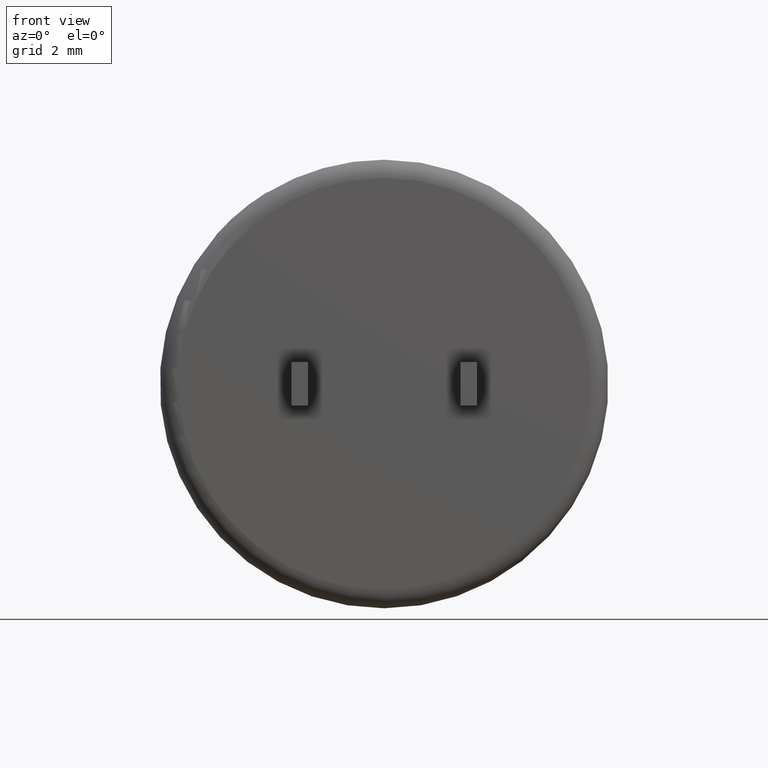
[diagram: clean part render]
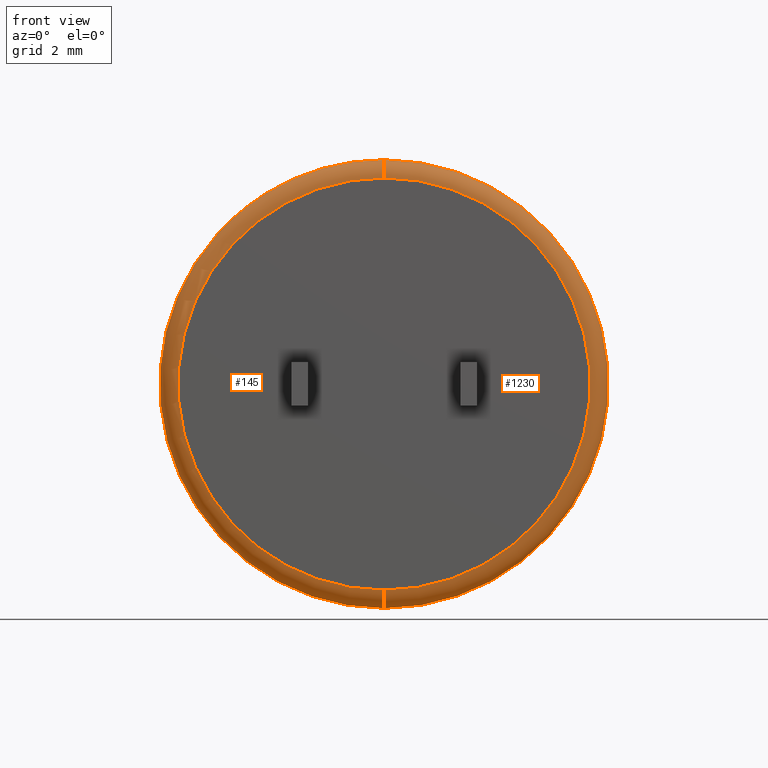
[diagram: same view with one multi-face feature highlighted, each face labeled with its STEP entity id]
A machine part, front view. The highlighted faces form ONE feature: a constant-radius fillet chain: 2 tangent blend faces with common blend radius 0.5483 mm. The faces share edges in the B-rep.
Their STEP definitions:
[1] entity #1230 (Torus):
#3 = ORIENTED_EDGE ( 'NONE', *, *, #2191, .F. ) ;
#287 = EDGE_CURVE ( 'NONE', #2507, #923, #1135, .T. ) ;
#406 = CARTESIAN_POINT ( 'NONE',  ( 0.0000000000000000000, 0.5482500000000001300, -6.750000000000000000 ) ) ;
#438 = CIRCLE ( 'NONE', #1593, 0.5482500000000001300 ) ;
#460 = CIRCLE ( 'NONE', #1229, 6.201749999999999700 ) ;
#541 = DIRECTION ( 'NONE',  ( 1.224646799147352700E-016, 0.0000000000000000000, -1.000000000000000000 ) ) ;
#688 = CARTESIAN_POINT ( 'NONE',  ( 7.930659590428366300E-016, 0.0000000000000000000, -6.201749999999999700 ) ) ;
#764 = DIRECTION ( 'NONE',  ( 0.0000000000000000000, 1.000000000000000000, 0.0000000000000000000 ) ) ;
#772 = DIRECTION ( 'NONE',  ( 0.0000000000000000000, 0.0000000000000000000, 1.000000000000000000 ) ) ;
#898 = DIRECTION ( 'NONE',  ( 0.0000000000000000000, 0.0000000000000000000, 1.000000000000000000 ) ) ;
#923 = VERTEX_POINT ( 'NONE', #406 ) ;
#961 = DIRECTION ( 'NONE',  ( -0.0000000000000000000, -1.000000000000000000, -0.0000000000000000000 ) ) ;
#966 = AXIS2_PLACEMENT_3D ( 'NONE', #2457, #764, #772 ) ;
#970 = CARTESIAN_POINT ( 'NONE',  ( 8.266365894244634300E-016, 0.5482500000000001300, 6.750000000000000000 ) ) ;
#1135 = CIRCLE ( 'NONE', #1666, 0.5482500000000001300 ) ;
#1160 = TOROIDAL_SURFACE ( 'NONE', #2411, 6.201749999999999700, 0.5482500000000000200 ) ;
#1229 = AXIS2_PLACEMENT_3D ( 'NONE', #1803, #961, #2033 ) ;
#1230 = ADVANCED_FACE ( 'NONE', ( #1797 ), #1160, .T. ) ;
#1492 = ORIENTED_EDGE ( 'NONE', *, *, #2229, .F. ) ;
#1563 = CIRCLE ( 'NONE', #966, 6.750000000000000000 ) ;
#1568 = DIRECTION ( 'NONE',  ( 0.0000000000000000000, 0.0000000000000000000, 1.000000000000000000 ) ) ;
#1593 = AXIS2_PLACEMENT_3D ( 'NONE', #2454, #2653, #1568 ) ;
#1666 = AXIS2_PLACEMENT_3D ( 'NONE', #2682, #1817, #541 ) ;
#1797 = FACE_OUTER_BOUND ( 'NONE', #2485, .T. ) ;
#1803 = CARTESIAN_POINT ( 'NONE',  ( 0.0000000000000000000, 0.0000000000000000000, 0.0000000000000000000 ) ) ;
#1817 = DIRECTION ( 'NONE',  ( 1.000000000000000000, -0.0000000000000000000, 1.224646799147353200E-016 ) ) ;
#1871 = ORIENTED_EDGE ( 'NONE', *, *, #2559, .F. ) ;
#1960 = CARTESIAN_POINT ( 'NONE',  ( 0.0000000000000000000, 0.5482500000000001300, 0.0000000000000000000 ) ) ;
#2033 = DIRECTION ( 'NONE',  ( 0.0000000000000000000, 0.0000000000000000000, 1.000000000000000000 ) ) ;
#2103 = ORIENTED_EDGE ( 'NONE', *, *, #287, .T. ) ;
#2182 = DIRECTION ( 'NONE',  ( 0.0000000000000000000, 1.000000000000000000, 0.0000000000000000000 ) ) ;
#2191 = EDGE_CURVE ( 'NONE', #2507, #2667, #460, .T. ) ;
#2229 = EDGE_CURVE ( 'NONE', #2742, #923, #1563, .T. ) ;
#2408 = CARTESIAN_POINT ( 'NONE',  ( 0.0000000000000000000, 0.0000000000000000000, 6.201749999999999700 ) ) ;
#2411 = AXIS2_PLACEMENT_3D ( 'NONE', #1960, #2182, #898 ) ;
#2454 = CARTESIAN_POINT ( 'NONE',  ( 0.0000000000000000000, 0.5482500000000001300, 6.201749999999999700 ) ) ;
#2457 = CARTESIAN_POINT ( 'NONE',  ( 0.0000000000000000000, 0.5482500000000001300, 0.0000000000000000000 ) ) ;
#2485 = EDGE_LOOP ( 'NONE', ( #3, #2103, #1492, #1871 ) ) ;
#2507 = VERTEX_POINT ( 'NONE', #688 ) ;
#2559 = EDGE_CURVE ( 'NONE', #2667, #2742, #438, .T. ) ;
#2653 = DIRECTION ( 'NONE',  ( -1.000000000000000000, 0.0000000000000000000, 0.0000000000000000000 ) ) ;
#2667 = VERTEX_POINT ( 'NONE', #2408 ) ;
#2682 = CARTESIAN_POINT ( 'NONE',  ( 7.594953286612098300E-016, 0.5482500000000001300, -6.201749999999999700 ) ) ;
#2742 = VERTEX_POINT ( 'NONE', #970 ) ;
[2] entity #145 (Torus):
#34 = ORIENTED_EDGE ( 'NONE', *, *, #2559, .T. ) ;
#67 = VERTEX_POINT ( 'NONE', #2406 ) ;
#90 = DIRECTION ( 'NONE',  ( 0.0000000000000000000, 1.000000000000000000, 0.0000000000000000000 ) ) ;
#142 = AXIS2_PLACEMENT_3D ( 'NONE', #1183, #2678, #547 ) ;
#145 = ADVANCED_FACE ( 'NONE', ( #2662 ), #237, .T. ) ;
#159 = ORIENTED_EDGE ( 'NONE', *, *, #287, .F. ) ;
#212 = DIRECTION ( 'NONE',  ( -0.0000000000000000000, -1.000000000000000000, -0.0000000000000000000 ) ) ;
#237 = TOROIDAL_SURFACE ( 'NONE', #1349, 6.201749999999999700, 0.5482500000000000200 ) ;
#287 = EDGE_CURVE ( 'NONE', #2507, #923, #1135, .T. ) ;
#323 = CIRCLE ( 'NONE', #142, 6.750000000000000000 ) ;
#385 = CARTESIAN_POINT ( 'NONE',  ( 0.0000000000000000000, 0.5482500000000001300, 0.0000000000000000000 ) ) ;
#406 = CARTESIAN_POINT ( 'NONE',  ( 0.0000000000000000000, 0.5482500000000001300, -6.750000000000000000 ) ) ;
#416 = ORIENTED_EDGE ( 'NONE', *, *, #1995, .F. ) ;
#438 = CIRCLE ( 'NONE', #1593, 0.5482500000000001300 ) ;
#453 = CARTESIAN_POINT ( 'NONE',  ( -3.518969686245407400, 0.5482500000000001300, 5.760152111471180400 ) ) ;
#541 = DIRECTION ( 'NONE',  ( 1.224646799147352700E-016, 0.0000000000000000000, -1.000000000000000000 ) ) ;
#547 = DIRECTION ( 'NONE',  ( 0.0000000000000000000, 0.0000000000000000000, 1.000000000000000000 ) ) ;
#688 = CARTESIAN_POINT ( 'NONE',  ( 7.930659590428366300E-016, 0.0000000000000000000, -6.201749999999999700 ) ) ;
#707 = CARTESIAN_POINT ( 'NONE',  ( 0.0000000000000000000, 0.5482500000000001300, 0.0000000000000000000 ) ) ;
#785 = DIRECTION ( 'NONE',  ( 0.0000000000000000000, 1.000000000000000000, 0.0000000000000000000 ) ) ;
#867 = CARTESIAN_POINT ( 'NONE',  ( 0.0000000000000000000, 0.5482500000000001300, 0.0000000000000000000 ) ) ;
#885 = ORIENTED_EDGE ( 'NONE', *, *, #1592, .F. ) ;
#923 = VERTEX_POINT ( 'NONE', #406 ) ;
#930 = CIRCLE ( 'NONE', #2345, 6.750000000000000000 ) ;
#970 = CARTESIAN_POINT ( 'NONE',  ( 8.266365894244634300E-016, 0.5482500000000001300, 6.750000000000000000 ) ) ;
#971 = CIRCLE ( 'NONE', #1702, 6.750000000000000000 ) ;
#1135 = CIRCLE ( 'NONE', #1666, 0.5482500000000001300 ) ;
#1171 = DIRECTION ( 'NONE',  ( 0.0000000000000000000, 0.0000000000000000000, 1.000000000000000000 ) ) ;
#1183 = CARTESIAN_POINT ( 'NONE',  ( 0.0000000000000000000, 0.5482500000000001300, 0.0000000000000000000 ) ) ;
#1349 = AXIS2_PLACEMENT_3D ( 'NONE', #707, #90, #2671 ) ;
#1542 = ORIENTED_EDGE ( 'NONE', *, *, #1573, .F. ) ;
#1568 = DIRECTION ( 'NONE',  ( 0.0000000000000000000, 0.0000000000000000000, 1.000000000000000000 ) ) ;
#1573 = EDGE_CURVE ( 'NONE', #923, #67, #930, .T. ) ;
#1592 = EDGE_CURVE ( 'NONE', #67, #1875, #323, .T. ) ;
#1593 = AXIS2_PLACEMENT_3D ( 'NONE', #2454, #2653, #1568 ) ;
#1659 = EDGE_CURVE ( 'NONE', #1875, #2742, #971, .T. ) ;
#1666 = AXIS2_PLACEMENT_3D ( 'NONE', #2682, #1817, #541 ) ;
#1702 = AXIS2_PLACEMENT_3D ( 'NONE', #385, #785, #1837 ) ;
#1713 = CARTESIAN_POINT ( 'NONE',  ( 0.0000000000000000000, 0.0000000000000000000, 0.0000000000000000000 ) ) ;
#1814 = DIRECTION ( 'NONE',  ( 0.0000000000000000000, 1.000000000000000000, 0.0000000000000000000 ) ) ;
#1817 = DIRECTION ( 'NONE',  ( 1.000000000000000000, -0.0000000000000000000, 1.224646799147353200E-016 ) ) ;
#1837 = DIRECTION ( 'NONE',  ( 0.0000000000000000000, 0.0000000000000000000, 1.000000000000000000 ) ) ;
#1875 = VERTEX_POINT ( 'NONE', #453 ) ;
#1995 = EDGE_CURVE ( 'NONE', #2667, #2507, #2659, .T. ) ;
#2141 = AXIS2_PLACEMENT_3D ( 'NONE', #1713, #212, #2373 ) ;
#2247 = EDGE_LOOP ( 'NONE', ( #159, #416, #34, #2739, #885, #1542 ) ) ;
#2345 = AXIS2_PLACEMENT_3D ( 'NONE', #867, #1814, #1171 ) ;
#2373 = DIRECTION ( 'NONE',  ( 0.0000000000000000000, 0.0000000000000000000, 1.000000000000000000 ) ) ;
#2406 = CARTESIAN_POINT ( 'NONE',  ( -5.047477323014629000, 0.5482500000000001300, 4.481681902327861300 ) ) ;
#2408 = CARTESIAN_POINT ( 'NONE',  ( 0.0000000000000000000, 0.0000000000000000000, 6.201749999999999700 ) ) ;
#2454 = CARTESIAN_POINT ( 'NONE',  ( 0.0000000000000000000, 0.5482500000000001300, 6.201749999999999700 ) ) ;
#2507 = VERTEX_POINT ( 'NONE', #688 ) ;
#2559 = EDGE_CURVE ( 'NONE', #2667, #2742, #438, .T. ) ;
#2653 = DIRECTION ( 'NONE',  ( -1.000000000000000000, 0.0000000000000000000, 0.0000000000000000000 ) ) ;
#2659 = CIRCLE ( 'NONE', #2141, 6.201749999999999700 ) ;
#2662 = FACE_OUTER_BOUND ( 'NONE', #2247, .T. ) ;
#2667 = VERTEX_POINT ( 'NONE', #2408 ) ;
#2671 = DIRECTION ( 'NONE',  ( 0.0000000000000000000, 0.0000000000000000000, 1.000000000000000000 ) ) ;
#2678 = DIRECTION ( 'NONE',  ( 0.0000000000000000000, 1.000000000000000000, 0.0000000000000000000 ) ) ;
#2682 = CARTESIAN_POINT ( 'NONE',  ( 7.594953286612098300E-016, 0.5482500000000001300, -6.201749999999999700 ) ) ;
#2739 = ORIENTED_EDGE ( 'NONE', *, *, #1659, .F. ) ;
#2742 = VERTEX_POINT ( 'NONE', #970 ) ;